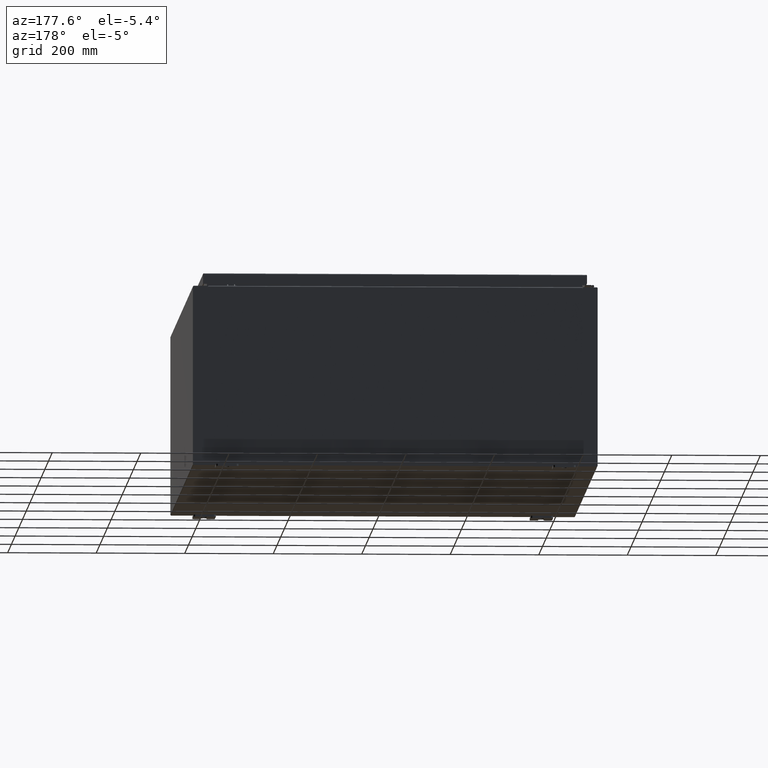
[diagram: clean part render]
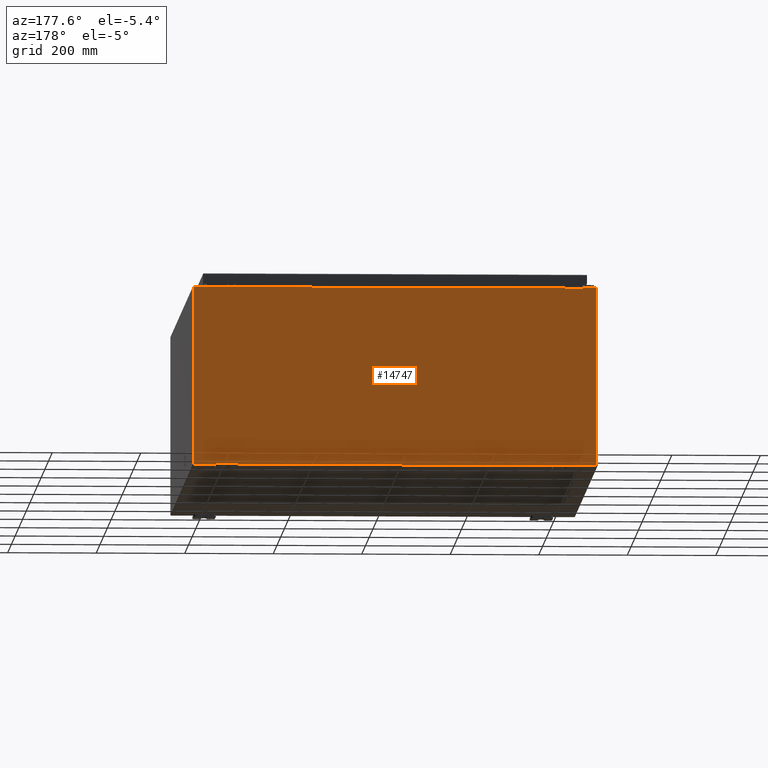
[diagram: same view with one face highlighted and labeled with its STEP entity id]
A machine part, auxiliary view. The second image highlights one B-rep face of the part: STEP entity #14747.
In plain terms, the highlighted planar face has unit normal (0, -1, 0).
Its self-contained STEP definition (entity closure, byte-faithful):
#1850 = CARTESIAN_POINT ( 'NONE',  ( -17.92530000000000000, 0.0000000000000000000, 7.925300000000001800 ) ) ;
#3634 = VERTEX_POINT ( 'NONE', #31519 ) ;
#6730 = VERTEX_POINT ( 'NONE', #66852 ) ;
#7352 = VERTEX_POINT ( 'NONE', #116272 ) ;
#8565 = ORIENTED_EDGE ( 'NONE', *, *, #131617, .F. ) ;
#11683 = EDGE_CURVE ( 'NONE', #117194, #21759, #102893, .T. ) ;
#12434 = EDGE_CURVE ( 'NONE', #49918, #133771, #71909, .T. ) ;
#13307 = PLANE ( 'NONE',  #74683 ) ;
#14747 = ADVANCED_FACE ( 'NONE', ( #15689 ), #13307, .F. ) ;
#15689 = FACE_OUTER_BOUND ( 'NONE', #91093, .T. ) ;
#17095 = VERTEX_POINT ( 'NONE', #113571 ) ;
#17157 = CIRCLE ( 'NONE', #98499, 0.01867499999999949400 ) ;
#18062 = VERTEX_POINT ( 'NONE', #131855 ) ;
#18260 = CARTESIAN_POINT ( 'NONE',  ( 17.92530000000000000, 0.0000000000000000000, 7.925300000000000000 ) ) ;
#18718 = DIRECTION ( 'NONE',  ( 0.0000000000000000000, 0.0000000000000000000, -1.000000000000000000 ) ) ;
#18939 = AXIS2_PLACEMENT_3D ( 'NONE', #25322, #97820, #35771 ) ;
#20155 = VECTOR ( 'NONE', #50015, 39.37007874015748100 ) ;
#20697 = ORIENTED_EDGE ( 'NONE', *, *, #24794, .T. ) ;
#21759 = VERTEX_POINT ( 'NONE', #66394 ) ;
#24794 = EDGE_CURVE ( 'NONE', #18062, #117194, #79432, .T. ) ;
#25322 = CARTESIAN_POINT ( 'NONE',  ( -16.65587500000000200, 0.0000000000000000000, 7.874950000000001900 ) ) ;
#28030 = DIRECTION ( 'NONE',  ( -0.0000000000000000000, -0.0000000000000000000, 1.000000000000000000 ) ) ;
#28228 = ORIENTED_EDGE ( 'NONE', *, *, #102417, .T. ) ;
#29128 = DIRECTION ( 'NONE',  ( 1.000000000000000000, 0.0000000000000000000, 0.0000000000000000000 ) ) ;
#29917 = CARTESIAN_POINT ( 'NONE',  ( 16.63720000000000400, 0.0000000000000000000, 0.0000000000000000000 ) ) ;
#31519 = CARTESIAN_POINT ( 'NONE',  ( 16.67455000000000700, 0.0000000000000000000, 7.925300000000000000 ) ) ;
#35771 = DIRECTION ( 'NONE',  ( 0.0000000000000000000, 0.0000000000000000000, -1.000000000000000000 ) ) ;
#37137 = DIRECTION ( 'NONE',  ( -1.000000000000000000, -0.0000000000000000000, -0.0000000000000000000 ) ) ;
#39632 = CARTESIAN_POINT ( 'NONE',  ( -17.92530000000000000, 0.0000000000000000000, 7.925300000000001800 ) ) ;
#42597 = VECTOR ( 'NONE', #37137, 39.37007874015748100 ) ;
#43516 = ORIENTED_EDGE ( 'NONE', *, *, #128686, .T. ) ;
#43831 = EDGE_CURVE ( 'NONE', #7352, #21759, #81204, .T. ) ;
#45031 = DIRECTION ( 'NONE',  ( 0.0000000000000000000, -1.000000000000000000, 0.0000000000000000000 ) ) ;
#49918 = VERTEX_POINT ( 'NONE', #92593 ) ;
#50015 = DIRECTION ( 'NONE',  ( 1.000000000000000000, 0.0000000000000000000, -6.096072018129154100E-017 ) ) ;
#51687 = CARTESIAN_POINT ( 'NONE',  ( 16.67454999999931800, -0.0000000000000000000, -1.447541957108381700E-012 ) ) ;
#53758 = CARTESIAN_POINT ( 'NONE',  ( -17.92530000000000000, 0.0000000000000000000, 7.925300000000001800 ) ) ;
#54023 = CARTESIAN_POINT ( 'NONE',  ( 16.65587500000000200, 0.0000000000000000000, 7.874950000000001900 ) ) ;
#55023 = VECTOR ( 'NONE', #29128, 39.37007874015748100 ) ;
#57545 = ORIENTED_EDGE ( 'NONE', *, *, #88619, .F. ) ;
#58495 = VECTOR ( 'NONE', #18718, 39.37007874015748100 ) ;
#59720 = CARTESIAN_POINT ( 'NONE',  ( 16.67455000000000000, 0.0000000000000000000, 7.874950000000001900 ) ) ;
#63937 = CARTESIAN_POINT ( 'NONE',  ( -16.63720000000000400, -0.0000000000000000000, 7.874950000000001900 ) ) ;
#64454 = DIRECTION ( 'NONE',  ( 0.0000000000000000000, 0.0000000000000000000, -1.000000000000000000 ) ) ;
#65407 = EDGE_CURVE ( 'NONE', #3634, #124758, #98446, .T. ) ;
#66394 = CARTESIAN_POINT ( 'NONE',  ( -16.67455000000000000, 0.0000000000000000000, 7.925300000000001800 ) ) ;
#66852 = CARTESIAN_POINT ( 'NONE',  ( 16.63720000000000400, 0.0000000000000000000, 7.874950000000001900 ) ) ;
#67902 = CARTESIAN_POINT ( 'NONE',  ( -17.92530000000000000, 0.0000000000000000000, -7.925299999999997300 ) ) ;
#68294 = ORIENTED_EDGE ( 'NONE', *, *, #43831, .F. ) ;
#68637 = VECTOR ( 'NONE', #111119, 39.37007874015748100 ) ;
#70129 = LINE ( 'NONE', #67902, #42597 ) ;
#70893 = VECTOR ( 'NONE', #92931, 39.37007874015748100 ) ;
#71909 = LINE ( 'NONE', #110657, #68637 ) ;
#72767 = VERTEX_POINT ( 'NONE', #109180 ) ;
#73854 = ORIENTED_EDGE ( 'NONE', *, *, #120290, .T. ) ;
#74678 = LINE ( 'NONE', #29917, #99004 ) ;
#74683 = AXIS2_PLACEMENT_3D ( 'NONE', #106694, #45031, #117612 ) ;
#79432 = LINE ( 'NONE', #79664, #103773 ) ;
#79664 = CARTESIAN_POINT ( 'NONE',  ( -17.92530000000000000, 0.0000000000000000000, 7.925300000000001800 ) ) ;
#80475 = ORIENTED_EDGE ( 'NONE', *, *, #113756, .F. ) ;
#81204 = LINE ( 'NONE', #97043, #133162 ) ;
#85123 = ORIENTED_EDGE ( 'NONE', *, *, #12434, .F. ) ;
#86097 = LINE ( 'NONE', #18260, #58495 ) ;
#87472 = ORIENTED_EDGE ( 'NONE', *, *, #90113, .T. ) ;
#88619 = EDGE_CURVE ( 'NONE', #6730, #17095, #74678, .T. ) ;
#90113 = EDGE_CURVE ( 'NONE', #3634, #72767, #102025, .T. ) ;
#91093 = EDGE_LOOP ( 'NONE', ( #68294, #8565, #85123, #73854, #57545, #80475, #119813, #87472, #43516, #28228, #20697, #122306 ) ) ;
#92593 = CARTESIAN_POINT ( 'NONE',  ( -16.63720000000000400, -2.356218894535426900E-015, 7.912300000000008100 ) ) ;
#92931 = DIRECTION ( 'NONE',  ( -8.681145560800387200E-014, 0.0000000000000000000, -1.000000000000000000 ) ) ;
#97043 = CARTESIAN_POINT ( 'NONE',  ( -16.67455000000000000, -0.0000000000000000000, 0.0000000000000000000 ) ) ;
#97820 = DIRECTION ( 'NONE',  ( -0.0000000000000000000, 1.000000000000000000, -0.0000000000000000000 ) ) ;
#98446 = LINE ( 'NONE', #51687, #70893 ) ;
#98499 = AXIS2_PLACEMENT_3D ( 'NONE', #54023, #126615, #64454 ) ;
#98737 = VECTOR ( 'NONE', #105474, 39.37007874015748100 ) ;
#99004 = VECTOR ( 'NONE', #112906, 39.37007874015748100 ) ;
#101589 = CARTESIAN_POINT ( 'NONE',  ( -16.63720000000000400, -2.356218894535426900E-015, 7.912300000000008100 ) ) ;
#102025 = LINE ( 'NONE', #53758, #98737 ) ;
#102417 = EDGE_CURVE ( 'NONE', #114724, #18062, #70129, .T. ) ;
#102893 = LINE ( 'NONE', #39632, #20155 ) ;
#103773 = VECTOR ( 'NONE', #28030, 39.37007874015748100 ) ;
#105474 = DIRECTION ( 'NONE',  ( 1.000000000000000000, 0.0000000000000000000, -6.096072018129154100E-017 ) ) ;
#106694 = CARTESIAN_POINT ( 'NONE',  ( 0.0000000000000000000, 0.0000000000000000000, 0.0000000000000000000 ) ) ;
#107501 = DIRECTION ( 'NONE',  ( 0.0000000000000000000, 0.0000000000000000000, 1.000000000000000000 ) ) ;
#109180 = CARTESIAN_POINT ( 'NONE',  ( 17.92530000000000000, 0.0000000000000000000, 7.925300000000000000 ) ) ;
#110234 = LINE ( 'NONE', #101589, #55023 ) ;
#110657 = CARTESIAN_POINT ( 'NONE',  ( -16.63720000000000400, -0.0000000000000000000, 0.0000000000000000000 ) ) ;
#111119 = DIRECTION ( 'NONE',  ( 0.0000000000000000000, 0.0000000000000000000, -1.000000000000000000 ) ) ;
#112906 = DIRECTION ( 'NONE',  ( 0.0000000000000000000, 0.0000000000000000000, 1.000000000000000000 ) ) ;
#113571 = CARTESIAN_POINT ( 'NONE',  ( 16.63720000000000400, 0.0000000000000000000, 7.912300000000001900 ) ) ;
#113756 = EDGE_CURVE ( 'NONE', #124758, #6730, #17157, .T. ) ;
#114724 = VERTEX_POINT ( 'NONE', #130935 ) ;
#116272 = CARTESIAN_POINT ( 'NONE',  ( -16.67455000000000000, 0.0000000000000000000, 7.874950000000001900 ) ) ;
#117194 = VERTEX_POINT ( 'NONE', #1850 ) ;
#117612 = DIRECTION ( 'NONE',  ( 0.0000000000000000000, -0.0000000000000000000, -1.000000000000000000 ) ) ;
#119813 = ORIENTED_EDGE ( 'NONE', *, *, #65407, .F. ) ;
#120290 = EDGE_CURVE ( 'NONE', #49918, #17095, #110234, .T. ) ;
#122306 = ORIENTED_EDGE ( 'NONE', *, *, #11683, .T. ) ;
#124758 = VERTEX_POINT ( 'NONE', #59720 ) ;
#126229 = CIRCLE ( 'NONE', #18939, 0.01867499999999949400 ) ;
#126615 = DIRECTION ( 'NONE',  ( -0.0000000000000000000, 1.000000000000000000, -0.0000000000000000000 ) ) ;
#128686 = EDGE_CURVE ( 'NONE', #72767, #114724, #86097, .T. ) ;
#130935 = CARTESIAN_POINT ( 'NONE',  ( 17.92530000000000000, 0.0000000000000000000, -7.925299999999997300 ) ) ;
#131617 = EDGE_CURVE ( 'NONE', #133771, #7352, #126229, .T. ) ;
#131855 = CARTESIAN_POINT ( 'NONE',  ( -17.92530000000000000, 0.0000000000000000000, -7.925299999999997300 ) ) ;
#133162 = VECTOR ( 'NONE', #107501, 39.37007874015748100 ) ;
#133771 = VERTEX_POINT ( 'NONE', #63937 ) ;